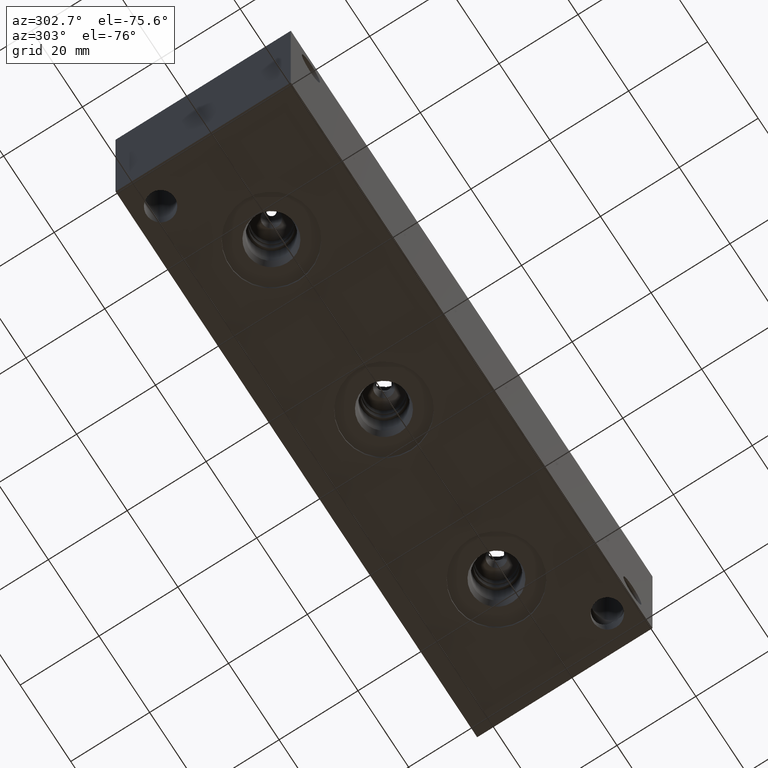
[diagram: clean part render]
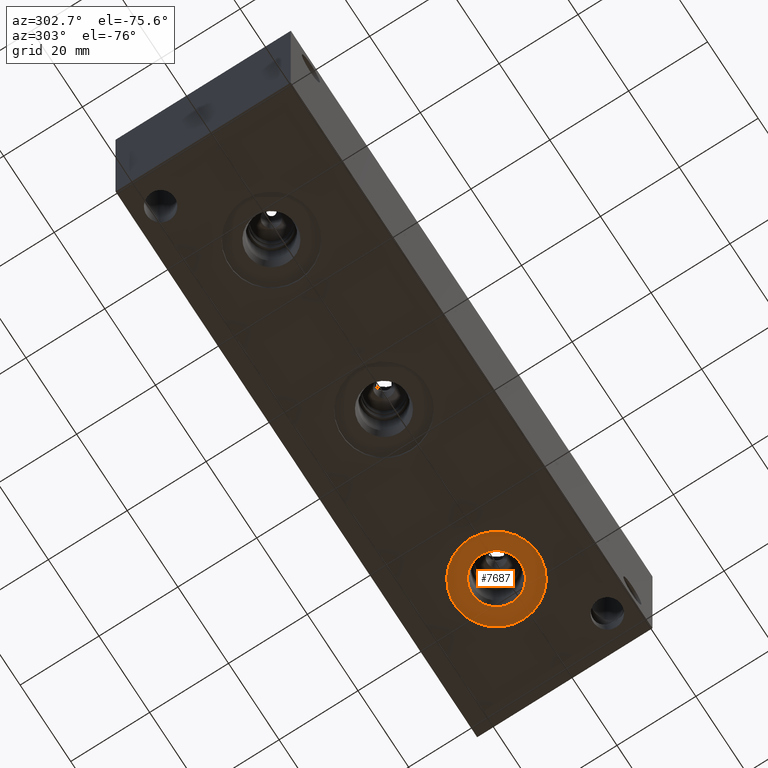
[diagram: same view with one face highlighted and labeled with its STEP entity id]
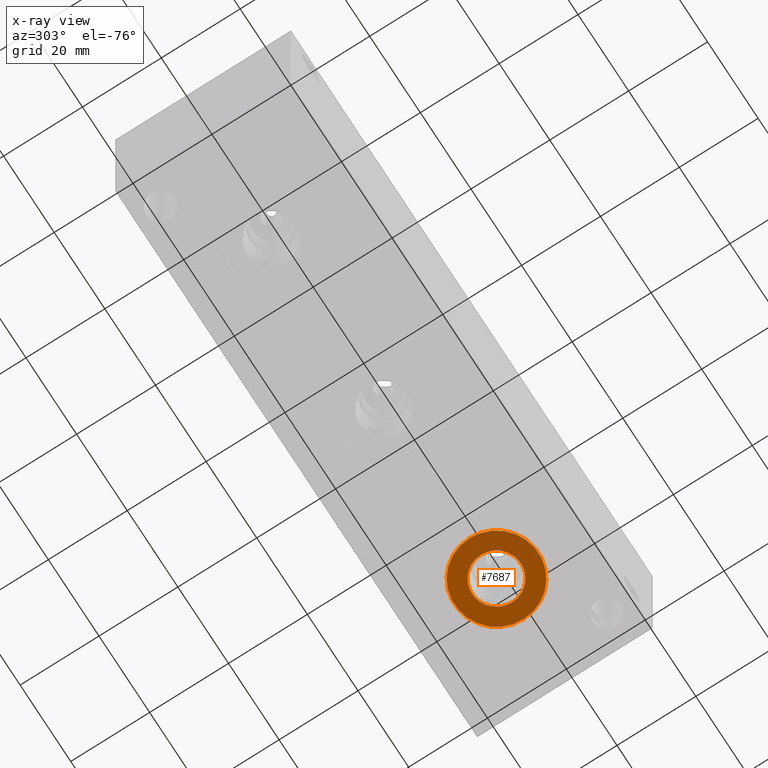
[diagram: x-ray of the same camera — body ghosted, the highlighted face saturated]
A machine part, auxiliary view. The second image highlights one B-rep face of the part: STEP entity #7687.
The next image is the same camera in x-ray: the body ghosted, the highlighted face saturated — about 0% of this face is hidden behind the body in this view.
In plain terms, the highlighted planar face has unit normal (0, 0, -1).
Its self-contained STEP definition (entity closure, byte-faithful):
#142=CIRCLE('',#8054,10.6426);
#143=CIRCLE('',#8055,10.6426);
#144=CIRCLE('',#8056,6.1976);
#238=FACE_BOUND('',#1270,.T.);
#473=PLANE('',#8053);
#834=FACE_OUTER_BOUND('',#1269,.T.);
#1269=EDGE_LOOP('',(#6679,#6680));
#1270=EDGE_LOOP('',(#6681));
#3655=VERTEX_POINT('',#13044);
#3656=VERTEX_POINT('',#13045);
#3657=VERTEX_POINT('',#13048);
#4679=EDGE_CURVE('',#3655,#3656,#142,.T.);
#4680=EDGE_CURVE('',#3656,#3655,#143,.T.);
#4681=EDGE_CURVE('',#3657,#3657,#144,.T.);
#6679=ORIENTED_EDGE('',*,*,#4679,.T.);
#6680=ORIENTED_EDGE('',*,*,#4680,.T.);
#6681=ORIENTED_EDGE('',*,*,#4681,.F.);
#7687=ADVANCED_FACE('',(#834,#238),#473,.T.);
#8053=AXIS2_PLACEMENT_3D('',#13043,#9467,#9468);
#8054=AXIS2_PLACEMENT_3D('',#13046,#9469,#9470);
#8055=AXIS2_PLACEMENT_3D('',#13047,#9471,#9472);
#8056=AXIS2_PLACEMENT_3D('',#13049,#9473,#9474);
#9467=DIRECTION('center_axis',(0.,0.,-1.));
#9468=DIRECTION('ref_axis',(1.,0.,0.));
#9469=DIRECTION('center_axis',(0.,0.,-1.));
#9470=DIRECTION('ref_axis',(1.,0.,0.));
#9471=DIRECTION('center_axis',(0.,0.,-1.));
#9472=DIRECTION('ref_axis',(1.,0.,0.));
#9473=DIRECTION('center_axis',(0.,0.,-1.));
#9474=DIRECTION('ref_axis',(1.,0.,0.));
#13043=CARTESIAN_POINT('Origin',(115.8748,22.225,0.7874));
#13044=CARTESIAN_POINT('',(126.5174,22.225,0.7874));
#13045=CARTESIAN_POINT('',(105.2322,22.225,0.7874));
#13046=CARTESIAN_POINT('Origin',(115.8748,22.225,0.7874));
#13047=CARTESIAN_POINT('Origin',(115.8748,22.225,0.7874));
#13048=CARTESIAN_POINT('',(109.6772,22.225,0.7874));
#13049=CARTESIAN_POINT('Origin',(115.8748,22.225,0.7874));